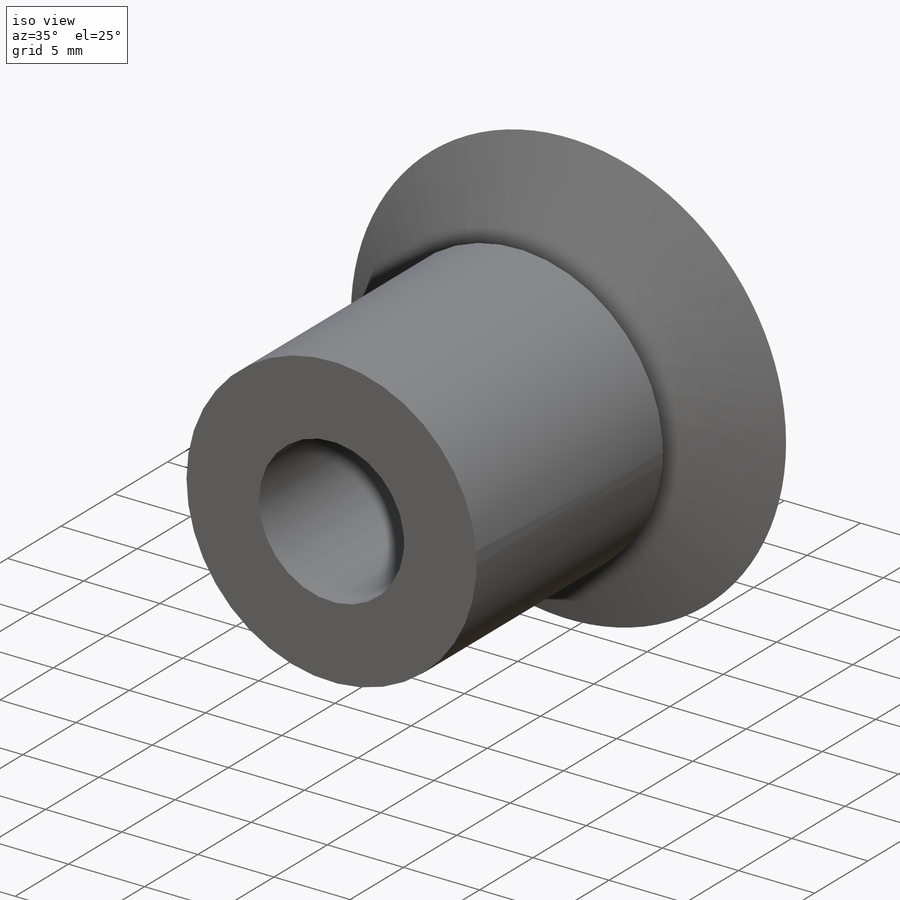
[diagram: iso view]
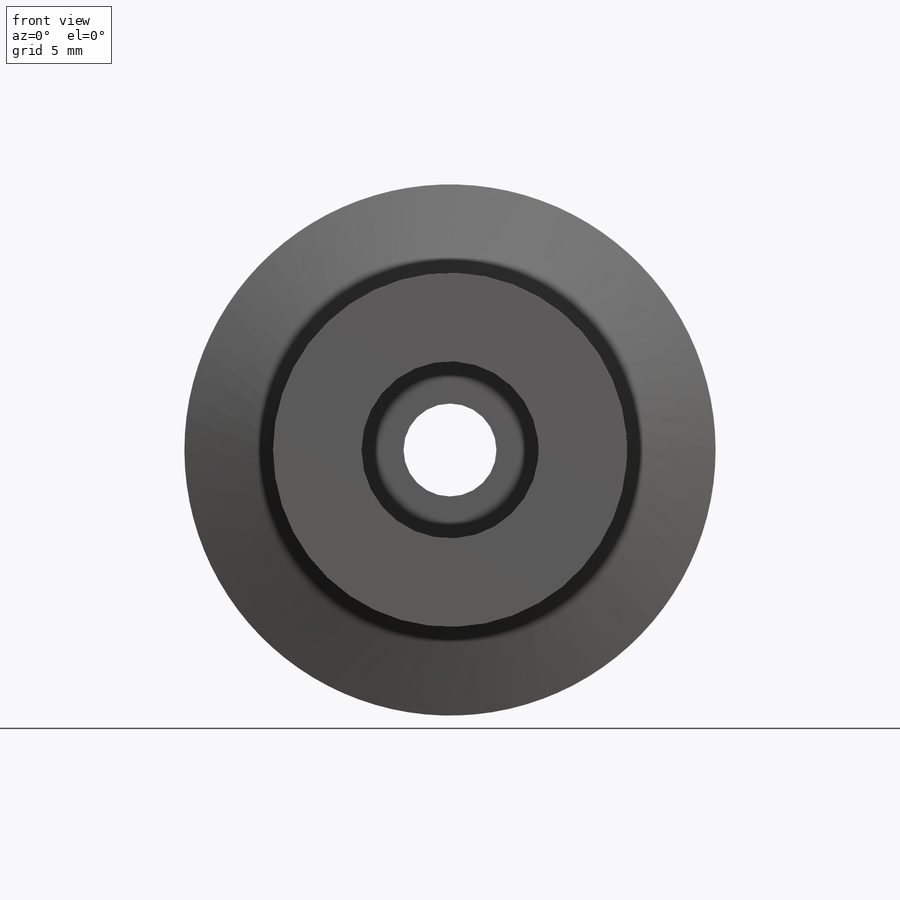
[diagram: front view]
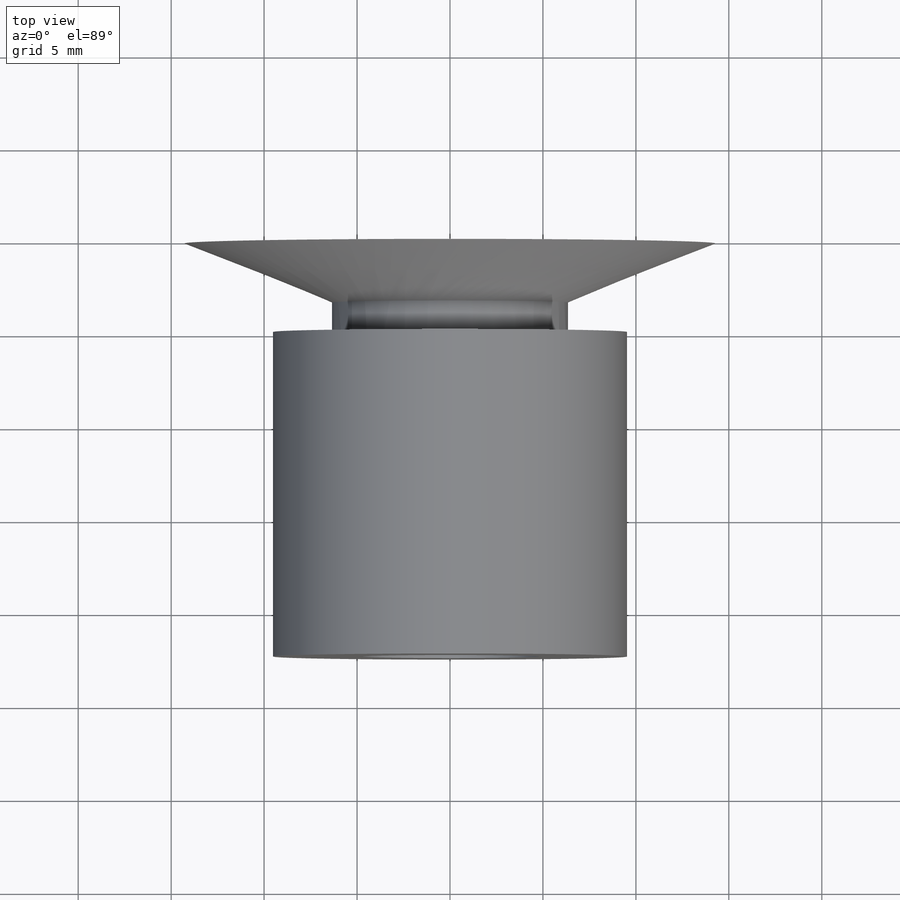
[diagram: top view]
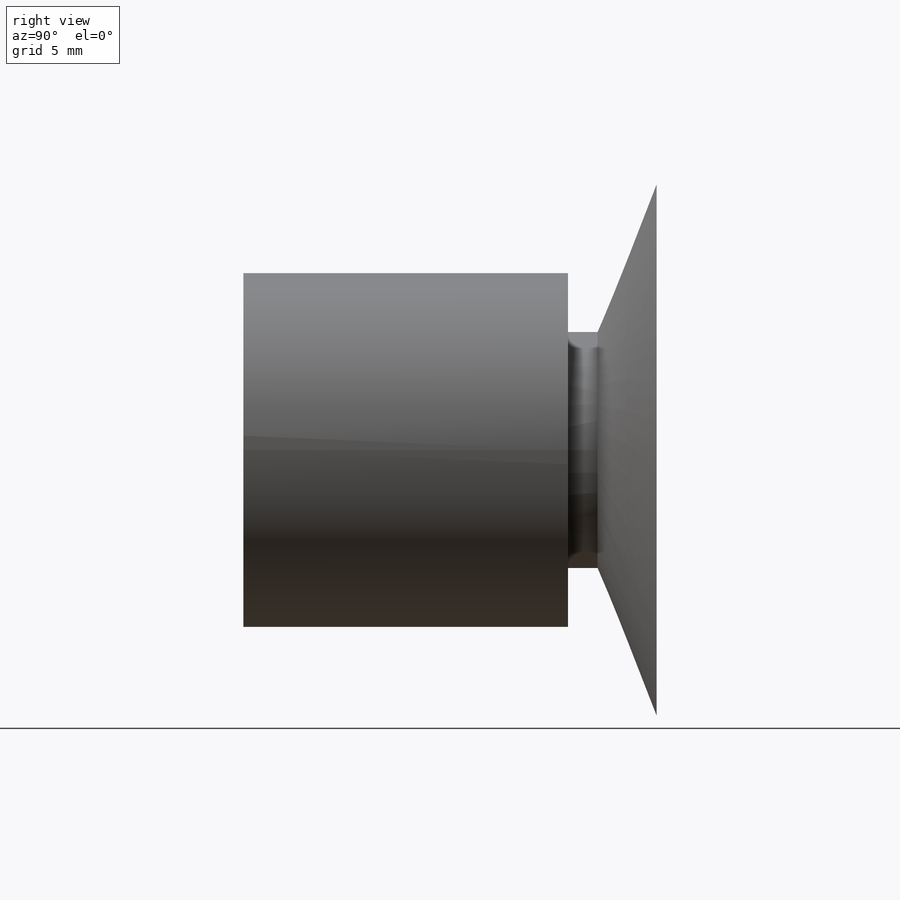
[diagram: right view]
SOLIDWORKS PART (.sldprt)
format: sldprt  version: not decoded by parser v0  size: 189,440 bytes
history: native  units: mm
features: sketch x6, extrude x2, material x1, plane x1 (+12 scaffold rows collapsed)
feature tree (22):
  scaffold x12  (default folders/planes/origin — collapsed)
  material  "Material <not specified>"
  sketch  "Sketch1"  dims[D1=19.05mm D2=9.525mm]
  extrude  "Boss-Extrude1"  Depth=17.4625mm
  sketch  "Sketch2"  dims[D1=12.7mm D2=5.0mm]
  extrude  "Boss-Extrude2"  Depth=1.5875mm
  sketch  "Sketch3"
  plane  "Plane1"  Offset=3.175mm
  sketch  "Sketch4"  dims[D1=28.575mm D2=25.4mm]
  sketch  "Sketch3<167>"
  sketch  "Sketch4<179>"
decode coverage: 5 of 8 modeling features carry decoded parameters
note: suppression state not decoded; provenance and decode notes live in map.json
